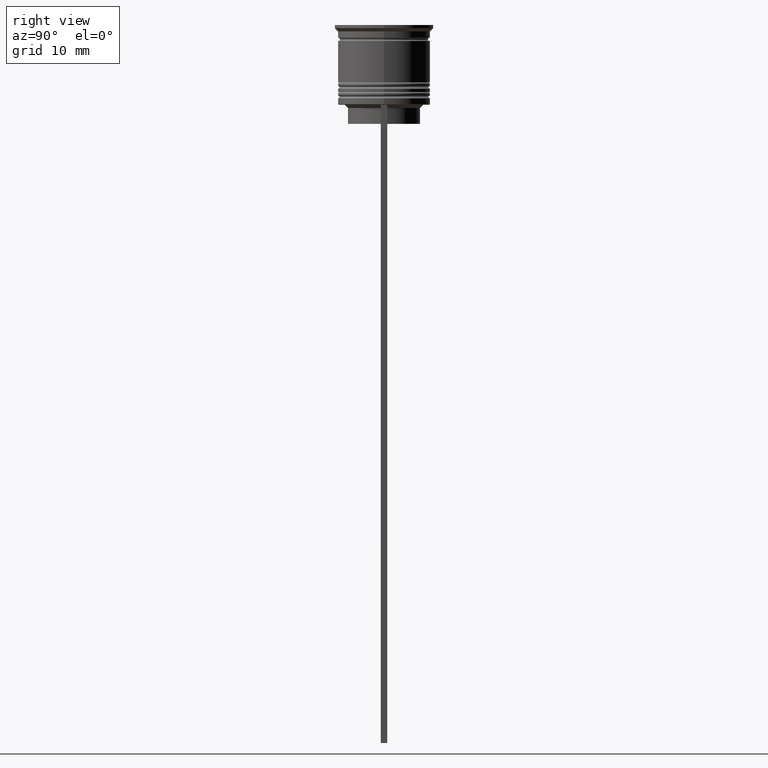
[diagram: clean part render]
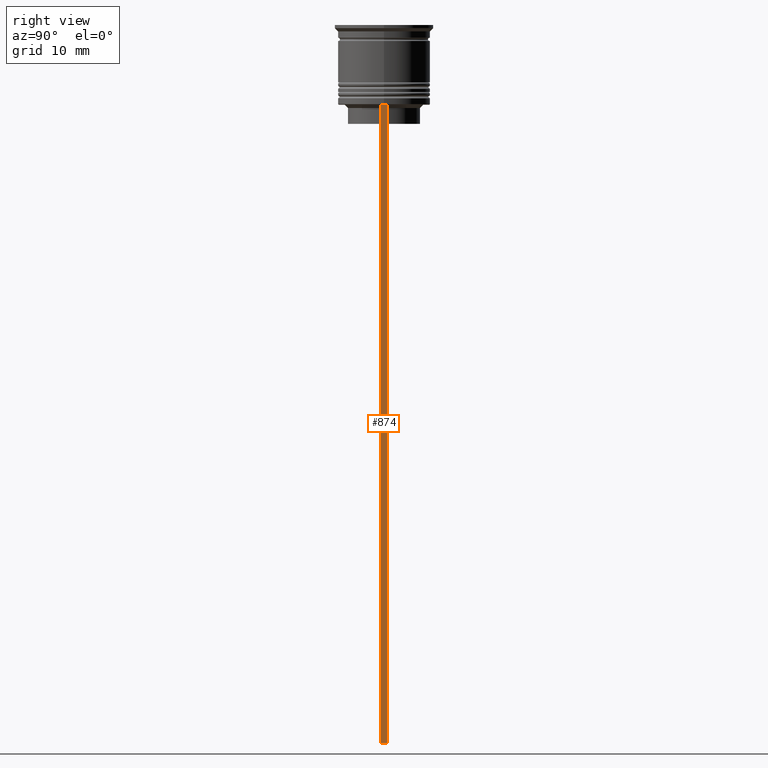
[diagram: same view with one face highlighted and labeled with its STEP entity id]
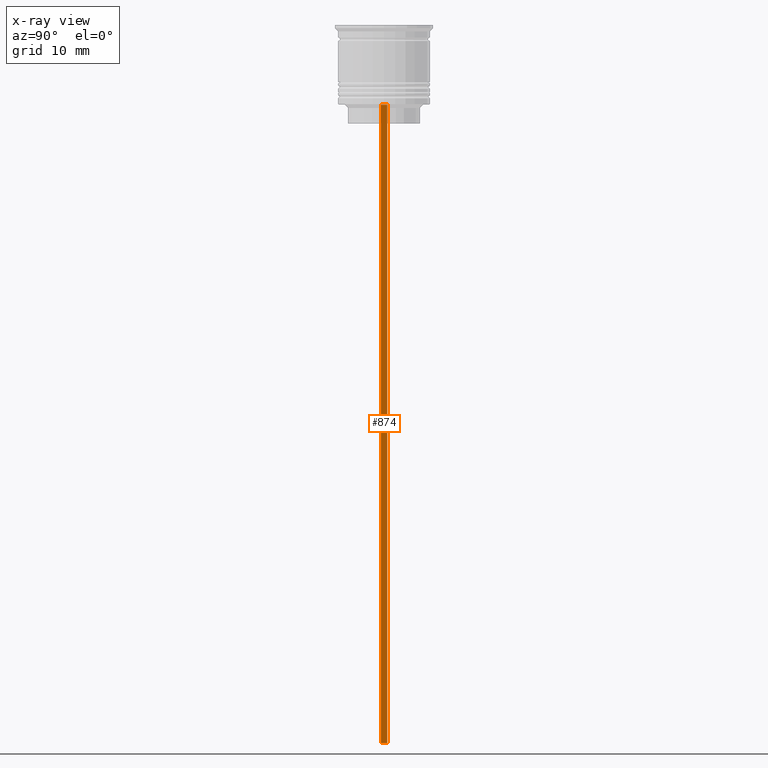
[diagram: x-ray of the same camera — body ghosted, the highlighted face saturated]
A machine part, right view. The second image highlights one B-rep face of the part: STEP entity #874.
The next image is the same camera in x-ray: the body ghosted, the highlighted face saturated — about 0% of this face is hidden behind the body in this view.
In plain terms, the highlighted planar face has unit normal (-1, 0, 0).
Its self-contained STEP definition (entity closure, byte-faithful):
#93 = CARTESIAN_POINT ( 'NONE',  ( 7.000000000000012434, -0.5000000000000022204, -112.5000000000000000 ) ) ;
#104 = AXIS2_PLACEMENT_3D ( 'NONE', #1341, #1193, #1531 ) ;
#279 = VERTEX_POINT ( 'NONE', #1558 ) ;
#303 = DIRECTION ( 'NONE',  ( 0.000000000000000000, 0.000000000000000000, -1.000000000000000000 ) ) ;
#383 = CARTESIAN_POINT ( 'NONE',  ( 7.000000000000012434, 0.4999999999999978351, -12.50000000000000000 ) ) ;
#434 = DIRECTION ( 'NONE',  ( 0.000000000000000000, 1.000000000000000000, 0.000000000000000000 ) ) ;
#637 = VECTOR ( 'NONE', #2315, 1000.000000000000000 ) ;
#659 = LINE ( 'NONE', #668, #1259 ) ;
#668 = CARTESIAN_POINT ( 'NONE',  ( 7.000000000000012434, 0.4999999999999978351, 1.535668847618198329 ) ) ;
#669 = ORIENTED_EDGE ( 'NONE', *, *, #2240, .F. ) ;
#868 = VERTEX_POINT ( 'NONE', #93 ) ;
#874 = ADVANCED_FACE ( 'NONE', ( #1557 ), #1216, .F. ) ;
#907 = VECTOR ( 'NONE', #434, 1000.000000000000000 ) ;
#988 = EDGE_CURVE ( 'NONE', #279, #868, #1987, .T. ) ;
#1130 = VERTEX_POINT ( 'NONE', #383 ) ;
#1170 = EDGE_CURVE ( 'NONE', #868, #2100, #1918, .T. ) ;
#1193 = DIRECTION ( 'NONE',  ( -1.000000000000000000, 0.000000000000000000, 0.000000000000000000 ) ) ;
#1214 = CARTESIAN_POINT ( 'NONE',  ( 7.000000000000012434, -0.5000000000000022204, -112.5000000000000000 ) ) ;
#1216 = PLANE ( 'NONE',  #104 ) ;
#1259 = VECTOR ( 'NONE', #303, 1000.000000000000000 ) ;
#1341 = CARTESIAN_POINT ( 'NONE',  ( 7.000000000000012434, -0.5000000000000022204, 1.535668847618198329 ) ) ;
#1361 = ORIENTED_EDGE ( 'NONE', *, *, #988, .T. ) ;
#1531 = DIRECTION ( 'NONE',  ( 0.000000000000000000, 0.000000000000000000, 1.000000000000000000 ) ) ;
#1540 = EDGE_LOOP ( 'NONE', ( #669, #2120, #1361, #1940 ) ) ;
#1557 = FACE_OUTER_BOUND ( 'NONE', #1540, .T. ) ;
#1558 = CARTESIAN_POINT ( 'NONE',  ( 7.000000000000012434, -0.5000000000000022204, -12.50000000000000000 ) ) ;
#1794 = CARTESIAN_POINT ( 'NONE',  ( 7.000000000000012434, -0.5000000000000022204, 1.535668847618198329 ) ) ;
#1918 = LINE ( 'NONE', #1214, #907 ) ;
#1940 = ORIENTED_EDGE ( 'NONE', *, *, #1170, .T. ) ;
#1987 = LINE ( 'NONE', #1794, #637 ) ;
#2058 = CARTESIAN_POINT ( 'NONE',  ( 7.000000000000012434, 0.4999999999999978351, -112.5000000000000000 ) ) ;
#2097 = LINE ( 'NONE', #2304, #2231 ) ;
#2100 = VERTEX_POINT ( 'NONE', #2058 ) ;
#2120 = ORIENTED_EDGE ( 'NONE', *, *, #2266, .T. ) ;
#2231 = VECTOR ( 'NONE', #2328, 1000.000000000000000 ) ;
#2240 = EDGE_CURVE ( 'NONE', #1130, #2100, #659, .T. ) ;
#2266 = EDGE_CURVE ( 'NONE', #1130, #279, #2097, .T. ) ;
#2304 = CARTESIAN_POINT ( 'NONE',  ( 7.000000000000012434, -0.5000000000000022204, -12.50000000000000000 ) ) ;
#2315 = DIRECTION ( 'NONE',  ( 0.000000000000000000, 0.000000000000000000, -1.000000000000000000 ) ) ;
#2328 = DIRECTION ( 'NONE',  ( 0.000000000000000000, -1.000000000000000000, 0.000000000000000000 ) ) ;